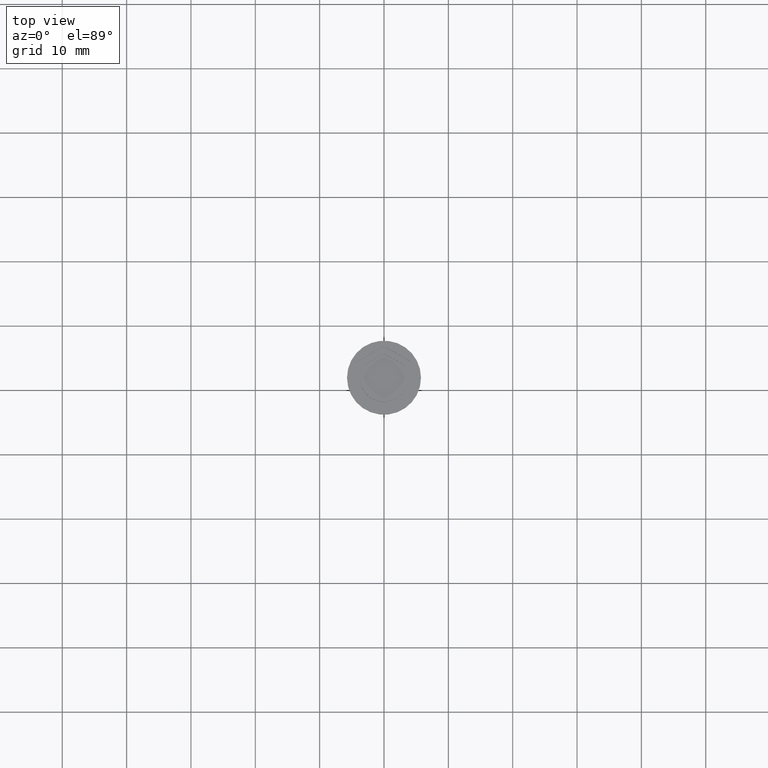
[diagram: clean part render]
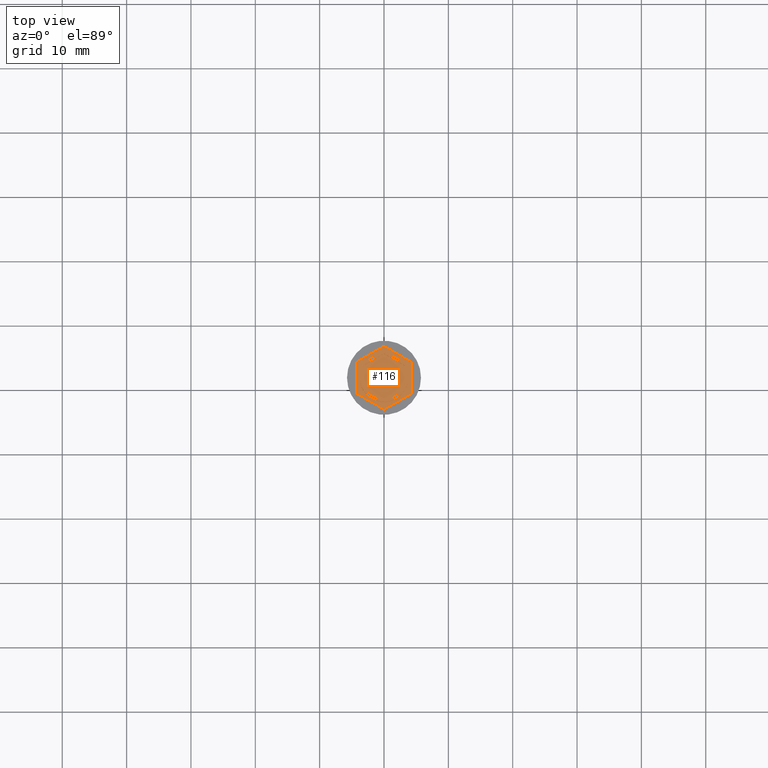
[diagram: same view with one face highlighted and labeled with its STEP entity id]
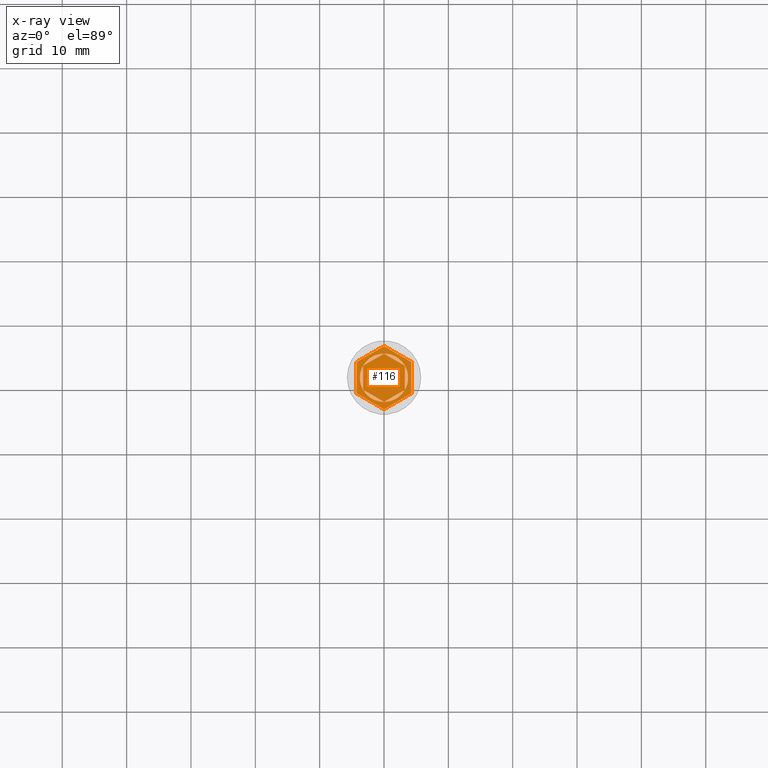
[diagram: x-ray of the same camera — body ghosted, the highlighted face saturated]
A machine part, top view. The second image highlights one B-rep face of the part: STEP entity #116.
The next image is the same camera in x-ray: the body ghosted, the highlighted face saturated — about 0% of this face is hidden behind the body in this view.
In plain terms, the highlighted planar face has unit normal (0, 0, 1).
Its self-contained STEP definition (entity closure, byte-faithful):
#17 = EDGE_CURVE ( 'NONE', #88, #1818, #2322, .T. ) ;
#18 = AXIS2_PLACEMENT_3D ( 'NONE', #1620, #1491, #728 ) ;
#40 = EDGE_CURVE ( 'NONE', #349, #1047, #2006, .T. ) ;
#63 = FACE_OUTER_BOUND ( 'NONE', #1857, .T. ) ;
#88 = VERTEX_POINT ( 'NONE', #2202 ) ;
#105 = CARTESIAN_POINT ( 'NONE',  ( 0.000000000000000000, 4.907477288111818936, -1.000000000000000000 ) ) ;
#113 = ORIENTED_EDGE ( 'NONE', *, *, #716, .F. ) ;
#116 = ADVANCED_FACE ( 'NONE', ( #2048, #2088, #999, #835, #2236, #1186, #63 ), #1548, .T. ) ;
#171 = VERTEX_POINT ( 'NONE', #634 ) ;
#178 = CARTESIAN_POINT ( 'NONE',  ( -4.250000000000000000, -2.453738644055909912, -1.000000000000000000 ) ) ;
#206 = VECTOR ( 'NONE', #1275, 1000.000000000000000 ) ;
#225 = EDGE_CURVE ( 'NONE', #1634, #171, #2060, .T. ) ;
#229 = LINE ( 'NONE', #2198, #1077 ) ;
#231 = ORIENTED_EDGE ( 'NONE', *, *, #225, .F. ) ;
#234 = LINE ( 'NONE', #1669, #612 ) ;
#280 = EDGE_CURVE ( 'NONE', #1047, #349, #1227, .T. ) ;
#309 = DIRECTION ( 'NONE',  ( 0.000000000000000000, -1.000000000000000000, 0.000000000000000000 ) ) ;
#317 = DIRECTION ( 'NONE',  ( 0.000000000000000000, 0.000000000000000000, 1.000000000000000000 ) ) ;
#323 = DIRECTION ( 'NONE',  ( -0.8660254037844387076, -0.4999999999999999445, 0.000000000000000000 ) ) ;
#349 = VERTEX_POINT ( 'NONE', #486 ) ;
#357 = EDGE_CURVE ( 'NONE', #1550, #1593, #1199, .T. ) ;
#360 = CARTESIAN_POINT ( 'NONE',  ( 4.250000000000000000, -2.453738644055909912, -1.000000000000000000 ) ) ;
#373 = LINE ( 'NONE', #178, #1635 ) ;
#386 = EDGE_LOOP ( 'NONE', ( #1841, #113 ) ) ;
#389 = EDGE_CURVE ( 'NONE', #865, #1502, #229, .T. ) ;
#416 = CARTESIAN_POINT ( 'NONE',  ( 0.000000000000000000, 0.000000000000000000, -1.000000000000000000 ) ) ;
#471 = VECTOR ( 'NONE', #745, 1000.000000000000114 ) ;
#477 = VERTEX_POINT ( 'NONE', #1802 ) ;
#481 = AXIS2_PLACEMENT_3D ( 'NONE', #1055, #317, #1737 ) ;
#486 = CARTESIAN_POINT ( 'NONE',  ( 3.245185174601965983, -1.879168215605940606, -1.000000000000000888 ) ) ;
#580 = CARTESIAN_POINT ( 'NONE',  ( -4.250000000000000000, 2.453738644055909468, -1.000000000000000000 ) ) ;
#597 = DIRECTION ( 'NONE',  ( 0.000000000000000000, 0.000000000000000000, 1.000000000000000000 ) ) ;
#612 = VECTOR ( 'NONE', #1904, 1000.000000000000114 ) ;
#634 = CARTESIAN_POINT ( 'NONE',  ( -3.245185174601965983, 1.879168215605940384, -1.000000000000000888 ) ) ;
#645 = EDGE_CURVE ( 'NONE', #2031, #682, #1336, .T. ) ;
#648 = CARTESIAN_POINT ( 'NONE',  ( 0.000000000000000000, 0.000000000000000000, -1.000000000000000000 ) ) ;
#653 = DIRECTION ( 'NONE',  ( 0.000000000000000000, 0.000000000000000000, 1.000000000000000000 ) ) ;
#656 = ORIENTED_EDGE ( 'NONE', *, *, #871, .F. ) ;
#660 = ORIENTED_EDGE ( 'NONE', *, *, #1973, .F. ) ;
#665 = EDGE_CURVE ( 'NONE', #1502, #865, #1072, .T. ) ;
#682 = VERTEX_POINT ( 'NONE', #1544 ) ;
#685 = DIRECTION ( 'NONE',  ( 0.8660254037844385966, 0.5000000000000001110, -0.000000000000000000 ) ) ;
#693 = AXIS2_PLACEMENT_3D ( 'NONE', #416, #1132, #1641 ) ;
#700 = AXIS2_PLACEMENT_3D ( 'NONE', #648, #2254, #796 ) ;
#716 = EDGE_CURVE ( 'NONE', #927, #1305, #234, .T. ) ;
#727 = ORIENTED_EDGE ( 'NONE', *, *, #1273, .F. ) ;
#728 = DIRECTION ( 'NONE',  ( 1.000000000000000000, 0.000000000000000000, 0.000000000000000000 ) ) ;
#745 = DIRECTION ( 'NONE',  ( -0.8660254037844387076, 0.4999999999999998335, 0.000000000000000000 ) ) ;
#748 = CARTESIAN_POINT ( 'NONE',  ( 3.250000000000001332, 1.870828693386969777, -1.000000000000000888 ) ) ;
#796 = DIRECTION ( 'NONE',  ( 1.000000000000000000, 0.000000000000000000, 0.000000000000000000 ) ) ;
#831 = CARTESIAN_POINT ( 'NONE',  ( 0.000000000000000000, 0.000000000000000000, -1.000000000000000000 ) ) ;
#835 = FACE_BOUND ( 'NONE', #386, .T. ) ;
#844 = CIRCLE ( 'NONE', #693, 3.750000000000000888 ) ;
#848 = CARTESIAN_POINT ( 'NONE',  ( -0.004814825398034979984, -3.749996908992911937, -1.000000000000000888 ) ) ;
#865 = VERTEX_POINT ( 'NONE', #2123 ) ;
#871 = EDGE_CURVE ( 'NONE', #1818, #88, #1059, .T. ) ;
#903 = ORIENTED_EDGE ( 'NONE', *, *, #389, .F. ) ;
#916 = LINE ( 'NONE', #1607, #471 ) ;
#919 = CARTESIAN_POINT ( 'NONE',  ( -4.250000000000000000, -2.453738644055909912, -1.000000000000000000 ) ) ;
#927 = VERTEX_POINT ( 'NONE', #848 ) ;
#975 = EDGE_LOOP ( 'NONE', ( #2327, #903 ) ) ;
#994 = DIRECTION ( 'NONE',  ( 1.000000000000000000, 0.000000000000000000, 0.000000000000000000 ) ) ;
#995 = CARTESIAN_POINT ( 'NONE',  ( 0.000000000000000000, 0.000000000000000000, -1.000000000000000000 ) ) ;
#999 = FACE_BOUND ( 'NONE', #1771, .T. ) ;
#1000 = CARTESIAN_POINT ( 'NONE',  ( 0.000000000000000000, 3.752776749732567474, -1.000000000000000888 ) ) ;
#1010 = CARTESIAN_POINT ( 'NONE',  ( 0.000000000000000000, 0.000000000000000000, -1.000000000000000000 ) ) ;
#1025 = VERTEX_POINT ( 'NONE', #1279 ) ;
#1028 = EDGE_CURVE ( 'NONE', #1967, #1025, #916, .T. ) ;
#1045 = CARTESIAN_POINT ( 'NONE',  ( -4.250000000000000000, 2.453738644055909468, -1.000000000000000000 ) ) ;
#1047 = VERTEX_POINT ( 'NONE', #1102 ) ;
#1055 = CARTESIAN_POINT ( 'NONE',  ( 0.000000000000000000, 0.000000000000000000, -1.000000000000000000 ) ) ;
#1059 = LINE ( 'NONE', #1575, #1330 ) ;
#1072 = CIRCLE ( 'NONE', #1867, 3.750000000000000888 ) ;
#1076 = LINE ( 'NONE', #1000, #1938 ) ;
#1077 = VECTOR ( 'NONE', #1286, 1000.000000000000000 ) ;
#1102 = CARTESIAN_POINT ( 'NONE',  ( 0.004814825398034546303, -3.749996908992911493, -1.000000000000000888 ) ) ;
#1109 = AXIS2_PLACEMENT_3D ( 'NONE', #1010, #1909, #994 ) ;
#1122 = DIRECTION ( 'NONE',  ( 0.8660254037844385966, 0.5000000000000001110, 0.000000000000000000 ) ) ;
#1132 = DIRECTION ( 'NONE',  ( 0.000000000000000000, 0.000000000000000000, 1.000000000000000000 ) ) ;
#1155 = VERTEX_POINT ( 'NONE', #2030 ) ;
#1175 = EDGE_LOOP ( 'NONE', ( #660, #1602, #1581 ) ) ;
#1186 = FACE_BOUND ( 'NONE', #2122, .T. ) ;
#1199 = LINE ( 'NONE', #1045, #1757 ) ;
#1214 = VECTOR ( 'NONE', #1696, 1000.000000000000000 ) ;
#1227 = CIRCLE ( 'NONE', #481, 3.750000000000000888 ) ;
#1237 = ORIENTED_EDGE ( 'NONE', *, *, #40, .F. ) ;
#1252 = ORIENTED_EDGE ( 'NONE', *, *, #1028, .T. ) ;
#1254 = ORIENTED_EDGE ( 'NONE', *, *, #1789, .T. ) ;
#1263 = VECTOR ( 'NONE', #2184, 1000.000000000000114 ) ;
#1273 = EDGE_CURVE ( 'NONE', #171, #1634, #1076, .T. ) ;
#1275 = DIRECTION ( 'NONE',  ( 0.000000000000000000, 1.000000000000000000, 0.000000000000000000 ) ) ;
#1279 = CARTESIAN_POINT ( 'NONE',  ( 0.000000000000000000, 4.907477288111818936, -1.000000000000000000 ) ) ;
#1286 = DIRECTION ( 'NONE',  ( 0.8660254037844387076, -0.4999999999999998890, 0.000000000000000000 ) ) ;
#1305 = VERTEX_POINT ( 'NONE', #2316 ) ;
#1311 = LINE ( 'NONE', #1855, #2097 ) ;
#1321 = CARTESIAN_POINT ( 'NONE',  ( 4.250000000000000000, -2.453738644055909912, -1.000000000000000000 ) ) ;
#1328 = ORIENTED_EDGE ( 'NONE', *, *, #17, .F. ) ;
#1330 = VECTOR ( 'NONE', #1935, 1000.000000000000000 ) ;
#1336 = LINE ( 'NONE', #2061, #1214 ) ;
#1434 = EDGE_CURVE ( 'NONE', #1155, #2031, #844, .T. ) ;
#1460 = CARTESIAN_POINT ( 'NONE',  ( 3.245185174601965095, 1.879168215605940828, -1.000000000000000888 ) ) ;
#1464 = ORIENTED_EDGE ( 'NONE', *, *, #280, .F. ) ;
#1491 = DIRECTION ( 'NONE',  ( 0.000000000000000000, 0.000000000000000000, 1.000000000000000000 ) ) ;
#1502 = VERTEX_POINT ( 'NONE', #1460 ) ;
#1531 = DIRECTION ( 'NONE',  ( 1.000000000000000000, 0.000000000000000000, 0.000000000000000000 ) ) ;
#1544 = CARTESIAN_POINT ( 'NONE',  ( -3.250000000000000444, 1.870828693386971331, -1.000000000000000888 ) ) ;
#1548 = PLANE ( 'NONE',  #1912 ) ;
#1550 = VERTEX_POINT ( 'NONE', #580 ) ;
#1575 = CARTESIAN_POINT ( 'NONE',  ( 3.249999999999999556, -1.876388374866284403, -1.000000000000000888 ) ) ;
#1581 = ORIENTED_EDGE ( 'NONE', *, *, #1434, .F. ) ;
#1593 = VERTEX_POINT ( 'NONE', #919 ) ;
#1602 = ORIENTED_EDGE ( 'NONE', *, *, #645, .F. ) ;
#1607 = CARTESIAN_POINT ( 'NONE',  ( 4.250000000000000000, 2.453738644055909912, -1.000000000000000000 ) ) ;
#1620 = CARTESIAN_POINT ( 'NONE',  ( 0.000000000000000000, 0.000000000000000000, -1.000000000000000000 ) ) ;
#1622 = CARTESIAN_POINT ( 'NONE',  ( -0.004814825398034979984, 3.749996908992911937, -1.000000000000000888 ) ) ;
#1634 = VERTEX_POINT ( 'NONE', #1622 ) ;
#1635 = VECTOR ( 'NONE', #2330, 1000.000000000000000 ) ;
#1641 = DIRECTION ( 'NONE',  ( 1.000000000000000000, 0.000000000000000000, 0.000000000000000000 ) ) ;
#1669 = CARTESIAN_POINT ( 'NONE',  ( -3.250000000000000444, -1.876388374866283515, -1.000000000000000888 ) ) ;
#1673 = CIRCLE ( 'NONE', #2021, 3.750000000000000888 ) ;
#1695 = CARTESIAN_POINT ( 'NONE',  ( 4.250000000000000000, 2.453738644055909912, -1.000000000000000000 ) ) ;
#1696 = DIRECTION ( 'NONE',  ( 0.000000000000000000, 1.000000000000000000, 0.000000000000000000 ) ) ;
#1702 = VERTEX_POINT ( 'NONE', #360 ) ;
#1712 = DIRECTION ( 'NONE',  ( 0.000000000000000000, 0.000000000000000000, 1.000000000000000000 ) ) ;
#1715 = CARTESIAN_POINT ( 'NONE',  ( 0.000000000000000000, 0.000000000000000000, -1.000000000000000000 ) ) ;
#1730 = ORIENTED_EDGE ( 'NONE', *, *, #357, .T. ) ;
#1736 = EDGE_LOOP ( 'NONE', ( #1328, #656 ) ) ;
#1737 = DIRECTION ( 'NONE',  ( 1.000000000000000000, 0.000000000000000000, 0.000000000000000000 ) ) ;
#1744 = EDGE_CURVE ( 'NONE', #1593, #477, #373, .T. ) ;
#1757 = VECTOR ( 'NONE', #309, 1000.000000000000000 ) ;
#1758 = LINE ( 'NONE', #105, #1792 ) ;
#1771 = EDGE_LOOP ( 'NONE', ( #1464, #1237 ) ) ;
#1789 = EDGE_CURVE ( 'NONE', #477, #1702, #1311, .T. ) ;
#1792 = VECTOR ( 'NONE', #323, 999.9999999999998863 ) ;
#1802 = CARTESIAN_POINT ( 'NONE',  ( 4.392932287340942424E-16, -4.907477288111819824, -1.000000000000000000 ) ) ;
#1817 = EDGE_CURVE ( 'NONE', #1702, #1967, #1824, .T. ) ;
#1818 = VERTEX_POINT ( 'NONE', #748 ) ;
#1824 = LINE ( 'NONE', #1321, #206 ) ;
#1833 = CIRCLE ( 'NONE', #1109, 3.750000000000000888 ) ;
#1841 = ORIENTED_EDGE ( 'NONE', *, *, #2232, .F. ) ;
#1855 = CARTESIAN_POINT ( 'NONE',  ( 4.392932287340942424E-16, -4.907477288111819824, -1.000000000000000000 ) ) ;
#1857 = EDGE_LOOP ( 'NONE', ( #1252, #1978, #1730, #2235, #1254, #1945 ) ) ;
#1867 = AXIS2_PLACEMENT_3D ( 'NONE', #995, #1712, #1531 ) ;
#1904 = DIRECTION ( 'NONE',  ( -0.8660254037844385966, 0.5000000000000001110, 0.000000000000000000 ) ) ;
#1909 = DIRECTION ( 'NONE',  ( 0.000000000000000000, 0.000000000000000000, 1.000000000000000000 ) ) ;
#1912 = AXIS2_PLACEMENT_3D ( 'NONE', #1715, #597, #2078 ) ;
#1935 = DIRECTION ( 'NONE',  ( -4.622506457652797323E-16, -1.000000000000000000, 0.000000000000000000 ) ) ;
#1938 = VECTOR ( 'NONE', #685, 1000.000000000000114 ) ;
#1945 = ORIENTED_EDGE ( 'NONE', *, *, #1817, .T. ) ;
#1967 = VERTEX_POINT ( 'NONE', #1695 ) ;
#1973 = EDGE_CURVE ( 'NONE', #682, #1155, #1833, .T. ) ;
#1978 = ORIENTED_EDGE ( 'NONE', *, *, #2179, .T. ) ;
#1996 = CARTESIAN_POINT ( 'NONE',  ( -2.168404344971008868E-16, -3.752776749732567474, -1.000000000000000888 ) ) ;
#2006 = LINE ( 'NONE', #1996, #1263 ) ;
#2021 = AXIS2_PLACEMENT_3D ( 'NONE', #831, #653, #2109 ) ;
#2030 = CARTESIAN_POINT ( 'NONE',  ( -3.750000000000000888, 0.000000000000000000, -1.000000000000000000 ) ) ;
#2031 = VERTEX_POINT ( 'NONE', #2118 ) ;
#2048 = FACE_BOUND ( 'NONE', #975, .T. ) ;
#2060 = CIRCLE ( 'NONE', #700, 3.750000000000000888 ) ;
#2061 = CARTESIAN_POINT ( 'NONE',  ( -3.250000000000000444, 1.876388374866283515, -1.000000000000000888 ) ) ;
#2078 = DIRECTION ( 'NONE',  ( 1.000000000000000000, 0.000000000000000000, -0.000000000000000000 ) ) ;
#2088 = FACE_BOUND ( 'NONE', #1736, .T. ) ;
#2097 = VECTOR ( 'NONE', #1122, 1000.000000000000000 ) ;
#2109 = DIRECTION ( 'NONE',  ( 1.000000000000000000, 0.000000000000000000, 0.000000000000000000 ) ) ;
#2118 = CARTESIAN_POINT ( 'NONE',  ( -3.250000000000000444, -1.870828693386971331, -1.000000000000000888 ) ) ;
#2122 = EDGE_LOOP ( 'NONE', ( #231, #727 ) ) ;
#2123 = CARTESIAN_POINT ( 'NONE',  ( 0.004814825398034112622, 3.749996908992911493, -1.000000000000000888 ) ) ;
#2179 = EDGE_CURVE ( 'NONE', #1025, #1550, #1758, .T. ) ;
#2184 = DIRECTION ( 'NONE',  ( -0.8660254037844385966, -0.4999999999999999445, 0.000000000000000000 ) ) ;
#2198 = CARTESIAN_POINT ( 'NONE',  ( 3.250000000000001332, 1.876388374866283959, -1.000000000000000888 ) ) ;
#2202 = CARTESIAN_POINT ( 'NONE',  ( 3.249999999999999556, -1.870828693386972885, -1.000000000000000888 ) ) ;
#2232 = EDGE_CURVE ( 'NONE', #1305, #927, #1673, .T. ) ;
#2235 = ORIENTED_EDGE ( 'NONE', *, *, #1744, .T. ) ;
#2236 = FACE_BOUND ( 'NONE', #1175, .T. ) ;
#2254 = DIRECTION ( 'NONE',  ( 0.000000000000000000, 0.000000000000000000, 1.000000000000000000 ) ) ;
#2316 = CARTESIAN_POINT ( 'NONE',  ( -3.245185174601965983, -1.879168215605940384, -1.000000000000000888 ) ) ;
#2322 = CIRCLE ( 'NONE', #18, 3.750000000000000888 ) ;
#2327 = ORIENTED_EDGE ( 'NONE', *, *, #665, .F. ) ;
#2330 = DIRECTION ( 'NONE',  ( 0.8660254037844387076, -0.4999999999999999445, 0.000000000000000000 ) ) ;